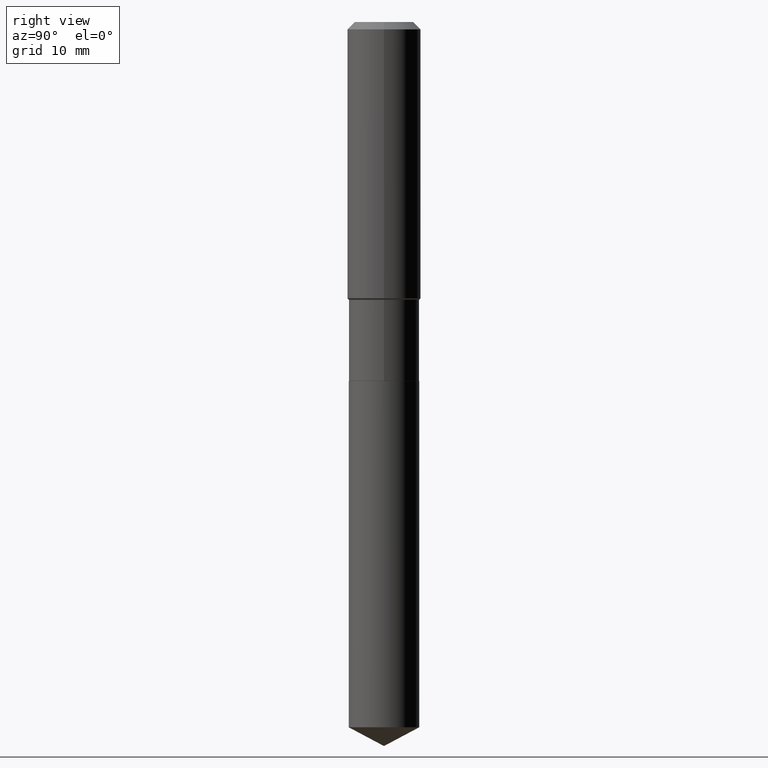
[diagram: clean part render]
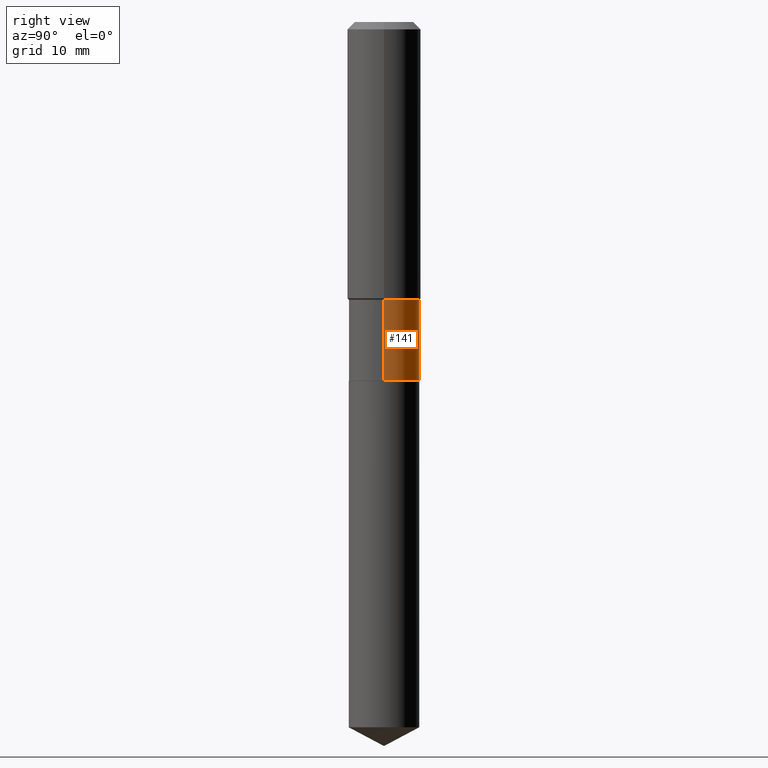
[diagram: same view with one face highlighted and labeled with its STEP entity id]
A machine part, right view. The second image highlights one B-rep face of the part: STEP entity #141.
In plain terms, the highlighted cylindrical surface (edge-blend (fillet) strip) has radius 5.7506 mm, axis along (-0, 0, 1).
Its self-contained STEP definition (entity closure, byte-faithful):
#8 = VERTEX_POINT ( 'NONE', #369 ) ;
#12 = EDGE_CURVE ( 'NONE', #105, #8, #23, .T. ) ;
#23 = LINE ( 'NONE', #362, #36 ) ;
#24 = ORIENTED_EDGE ( 'NONE', *, *, #108, .T. ) ;
#31 = DIRECTION ( 'NONE',  ( -2.445468806185136597E-29, 3.491481338843145583E-15, 1.000000000000000000 ) ) ;
#33 = DIRECTION ( 'NONE',  ( -2.445468806185136877E-29, 3.491481338843145188E-15, 1.000000000000000000 ) ) ;
#36 = VECTOR ( 'NONE', #175, 39.37007874015748143 ) ;
#66 = EDGE_CURVE ( 'NONE', #8, #354, #383, .T. ) ;
#70 = CARTESIAN_POINT ( 'NONE',  ( -0.2263999999999999624, -5.523031028960140857E-15, -2.302699999999999303 ) ) ;
#97 = ORIENTED_EDGE ( 'NONE', *, *, #66, .F. ) ;
#99 = CIRCLE ( 'NONE', #177, 0.2263999999999999624 ) ;
#105 = VERTEX_POINT ( 'NONE', #188 ) ;
#108 = EDGE_CURVE ( 'NONE', #105, #359, #99, .T. ) ;
#141 = ADVANCED_FACE ( 'NONE', ( #481 ), #414, .T. ) ;
#148 = CARTESIAN_POINT ( 'NONE',  ( 4.359048147025004325E-29, -6.223565486487904770E-15, -1.782499999999999307 ) ) ;
#164 = ORIENTED_EDGE ( 'NONE', *, *, #165, .T. ) ;
#165 = EDGE_CURVE ( 'NONE', #359, #354, #379, .T. ) ;
#175 = DIRECTION ( 'NONE',  ( -2.445468806185136877E-29, 3.491481338843145188E-15, 1.000000000000000000 ) ) ;
#177 = AXIS2_PLACEMENT_3D ( 'NONE', #483, #309, #451 ) ;
#188 = CARTESIAN_POINT ( 'NONE',  ( 0.2263999999999999624, -9.620776829182280876E-15, -2.302699999999999303 ) ) ;
#195 = ORIENTED_EDGE ( 'NONE', *, *, #12, .F. ) ;
#213 = EDGE_LOOP ( 'NONE', ( #24, #164, #97, #195 ) ) ;
#217 = VECTOR ( 'NONE', #33, 39.37007874015748143 ) ;
#273 = CARTESIAN_POINT ( 'NONE',  ( -0.2263999999999999346, 1.608668753760866356E-15, -1.113646904433710280E-29 ) ) ;
#276 = AXIS2_PLACEMENT_3D ( 'NONE', #421, #31, #453 ) ;
#304 = DIRECTION ( 'NONE',  ( -2.445468806185136597E-29, 3.491481338843145583E-15, 1.000000000000000000 ) ) ;
#309 = DIRECTION ( 'NONE',  ( -2.445468806185136597E-29, 3.491481338843145583E-15, 1.000000000000000000 ) ) ;
#354 = VERTEX_POINT ( 'NONE', #446 ) ;
#359 = VERTEX_POINT ( 'NONE', #70 ) ;
#362 = CARTESIAN_POINT ( 'NONE',  ( 0.2263999999999999346, -1.580942750228170233E-15, 1.103966422040199590E-29 ) ) ;
#369 = CARTESIAN_POINT ( 'NONE',  ( 0.2263999999999999069, -7.804508236716074411E-15, -1.782499999999999307 ) ) ;
#376 = DIRECTION ( 'NONE',  ( 1.000000000000000000, -6.982962677686265922E-15, 0.000000000000000000 ) ) ;
#379 = LINE ( 'NONE', #273, #217 ) ;
#383 = CIRCLE ( 'NONE', #450, 0.2263999999999999069 ) ;
#414 = CYLINDRICAL_SURFACE ( 'NONE', #276, 0.2263999999999999346 ) ;
#421 = CARTESIAN_POINT ( 'NONE',  ( 0.000000000000000000, 0.000000000000000000, 0.000000000000000000 ) ) ;
#446 = CARTESIAN_POINT ( 'NONE',  ( -0.2263999999999999069, -5.523031028960140857E-15, -1.782499999999999307 ) ) ;
#450 = AXIS2_PLACEMENT_3D ( 'NONE', #148, #304, #376 ) ;
#451 = DIRECTION ( 'NONE',  ( 1.000000000000000000, -6.982962677686269077E-15, 0.000000000000000000 ) ) ;
#453 = DIRECTION ( 'NONE',  ( 1.000000000000000000, -6.982962677686265922E-15, 4.876176775795935793E-29 ) ) ;
#481 = FACE_OUTER_BOUND ( 'NONE', #213, .T. ) ;
#483 = CARTESIAN_POINT ( 'NONE',  ( 5.631181020002513283E-29, -8.039834078954108869E-15, -2.302699999999999303 ) ) ;